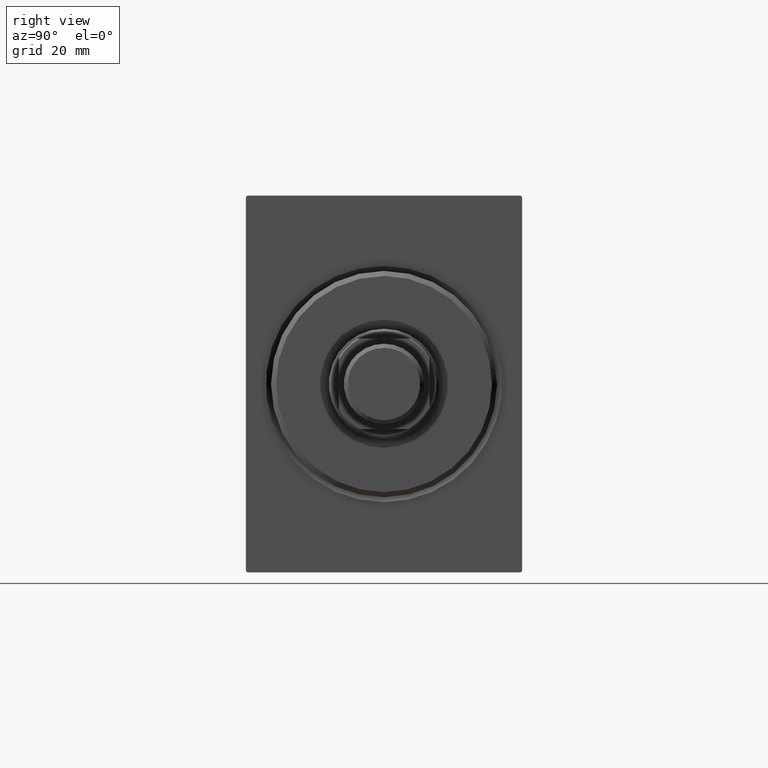
[diagram: clean part render]
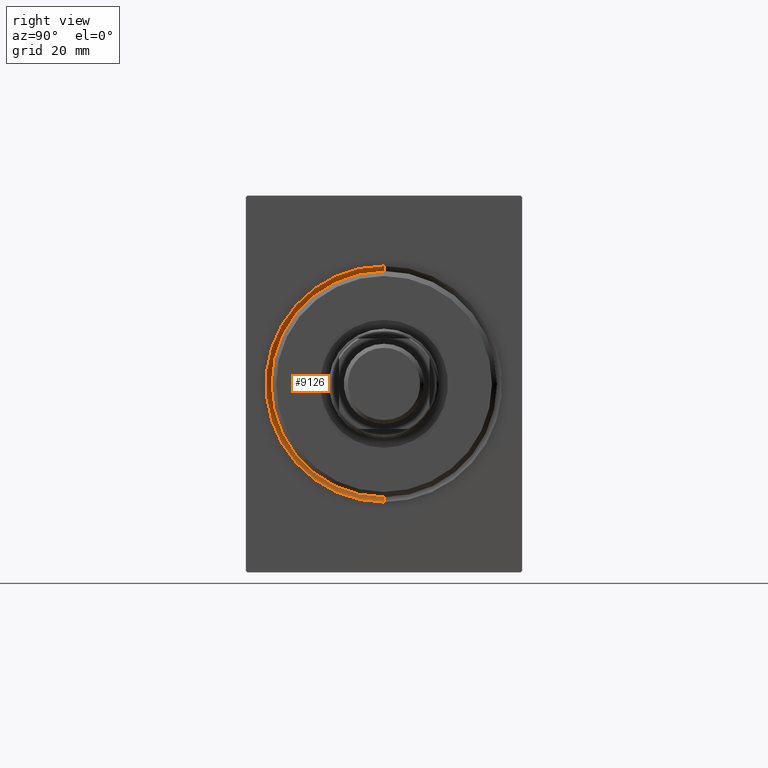
[diagram: same view with one face highlighted and labeled with its STEP entity id]
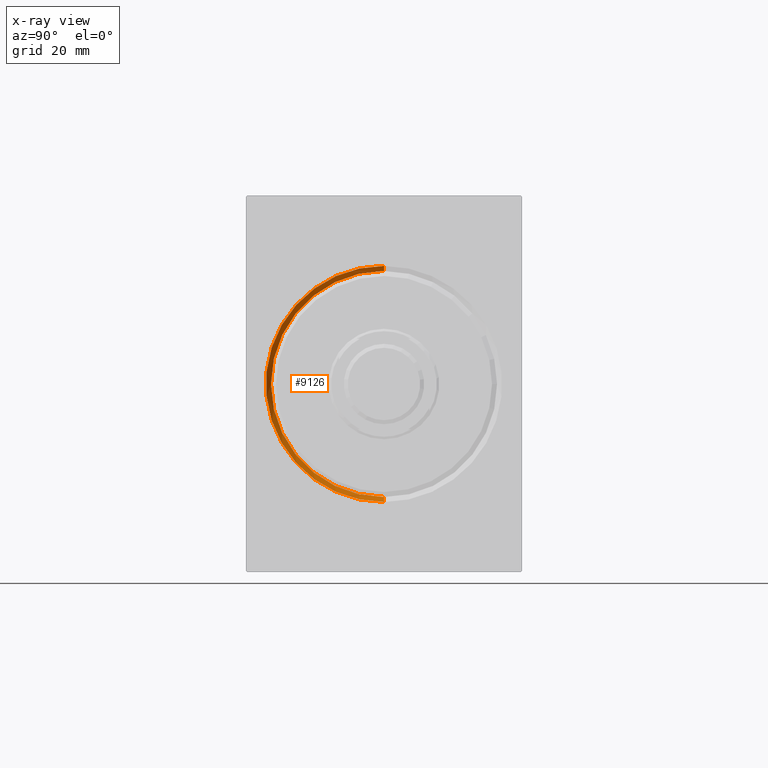
[diagram: x-ray of the same camera — body ghosted, the highlighted face saturated]
A machine part, right view. The second image highlights one B-rep face of the part: STEP entity #9126.
The next image is the same camera in x-ray: the body ghosted, the highlighted face saturated — about 0% of this face is hidden behind the body in this view.
In plain terms, the highlighted conical surface has half-angle 45 deg.
Its self-contained STEP definition (entity closure, byte-faithful):
#1314 = CIRCLE ( 'NONE', #28339, 23.50000000000000355 ) ;
#1329 = FACE_OUTER_BOUND ( 'NONE', #4892, .T. ) ;
#2099 = CARTESIAN_POINT ( 'NONE',  ( 0.000000000000000000, 2.877919977996280715E-15, -23.50000000000000355 ) ) ;
#2283 = AXIS2_PLACEMENT_3D ( 'NONE', #14571, #37163, #17623 ) ;
#3107 = ORIENTED_EDGE ( 'NONE', *, *, #35398, .F. ) ;
#4892 = EDGE_LOOP ( 'NONE', ( #38723, #33768, #4921, #3107 ) ) ;
#4921 = ORIENTED_EDGE ( 'NONE', *, *, #23283, .T. ) ;
#7035 = EDGE_CURVE ( 'NONE', #41601, #33298, #9862, .T. ) ;
#7523 = CARTESIAN_POINT ( 'NONE',  ( 1.000000000000000888, 2.755455298081545172E-15, -22.50000000000000355 ) ) ;
#7949 = DIRECTION ( 'NONE',  ( -1.000000000000000000, 0.000000000000000000, 0.000000000000000000 ) ) ;
#9126 = ADVANCED_FACE ( 'NONE', ( #1329 ), #38337, .F. ) ;
#9862 = CIRCLE ( 'NONE', #34123, 22.50000000000000355 ) ;
#11092 = LINE ( 'NONE', #41648, #25299 ) ;
#11760 = CARTESIAN_POINT ( 'NONE',  ( 0.000000000000000000, 0.000000000000000000, 23.50000000000000355 ) ) ;
#14571 = CARTESIAN_POINT ( 'NONE',  ( 1.000000000000000888, 0.000000000000000000, 0.000000000000000000 ) ) ;
#17623 = DIRECTION ( 'NONE',  ( 0.000000000000000000, 0.000000000000000000, 1.000000000000000000 ) ) ;
#18533 = CARTESIAN_POINT ( 'NONE',  ( 1.000000000000000888, 2.755455298081545172E-15, -22.50000000000000355 ) ) ;
#19457 = DIRECTION ( 'NONE',  ( 1.000000000000000000, 0.000000000000000000, 0.000000000000000000 ) ) ;
#19787 = VERTEX_POINT ( 'NONE', #2099 ) ;
#20043 = VERTEX_POINT ( 'NONE', #11760 ) ;
#23283 = EDGE_CURVE ( 'NONE', #41601, #20043, #11092, .T. ) ;
#24665 = CARTESIAN_POINT ( 'NONE',  ( 1.000000000000000888, 0.000000000000000000, 0.000000000000000000 ) ) ;
#24964 = DIRECTION ( 'NONE',  ( -0.7071067811865474617, 0.000000000000000000, 0.7071067811865474617 ) ) ;
#25299 = VECTOR ( 'NONE', #24964, 1000.000000000000114 ) ;
#26618 = CARTESIAN_POINT ( 'NONE',  ( 0.000000000000000000, 0.000000000000000000, 0.000000000000000000 ) ) ;
#28339 = AXIS2_PLACEMENT_3D ( 'NONE', #26618, #19457, #38985 ) ;
#30543 = LINE ( 'NONE', #7523, #35180 ) ;
#31118 = EDGE_CURVE ( 'NONE', #33298, #19787, #30543, .T. ) ;
#33073 = CARTESIAN_POINT ( 'NONE',  ( 1.000000000000000888, 0.000000000000000000, 22.50000000000000355 ) ) ;
#33298 = VERTEX_POINT ( 'NONE', #18533 ) ;
#33768 = ORIENTED_EDGE ( 'NONE', *, *, #7035, .F. ) ;
#34123 = AXIS2_PLACEMENT_3D ( 'NONE', #24665, #7949, #37888 ) ;
#35180 = VECTOR ( 'NONE', #40302, 1000.000000000000114 ) ;
#35398 = EDGE_CURVE ( 'NONE', #19787, #20043, #1314, .T. ) ;
#37163 = DIRECTION ( 'NONE',  ( -1.000000000000000000, 0.000000000000000000, 0.000000000000000000 ) ) ;
#37888 = DIRECTION ( 'NONE',  ( 0.000000000000000000, 0.000000000000000000, -1.000000000000000000 ) ) ;
#38337 = CONICAL_SURFACE ( 'NONE', #2283, 22.50000000000000355, 0.7853981633974482790 ) ;
#38723 = ORIENTED_EDGE ( 'NONE', *, *, #31118, .F. ) ;
#38985 = DIRECTION ( 'NONE',  ( 0.000000000000000000, 0.000000000000000000, -1.000000000000000000 ) ) ;
#40302 = DIRECTION ( 'NONE',  ( -0.7071067811865474617, 8.659560562354932858E-17, -0.7071067811865474617 ) ) ;
#41601 = VERTEX_POINT ( 'NONE', #33073 ) ;
#41648 = CARTESIAN_POINT ( 'NONE',  ( 1.000000000000000888, 0.000000000000000000, 22.50000000000000355 ) ) ;